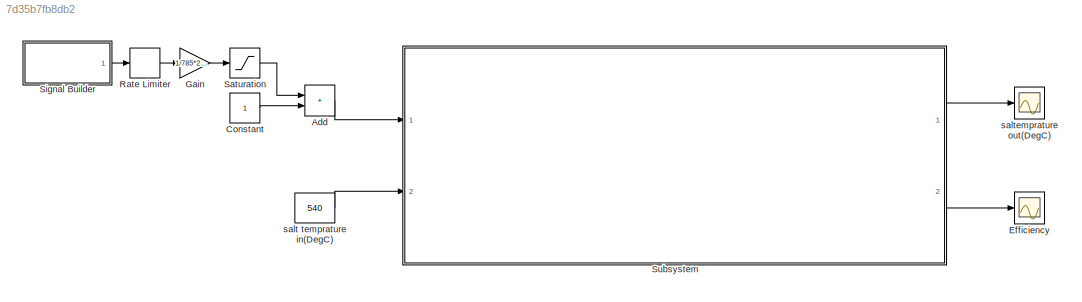
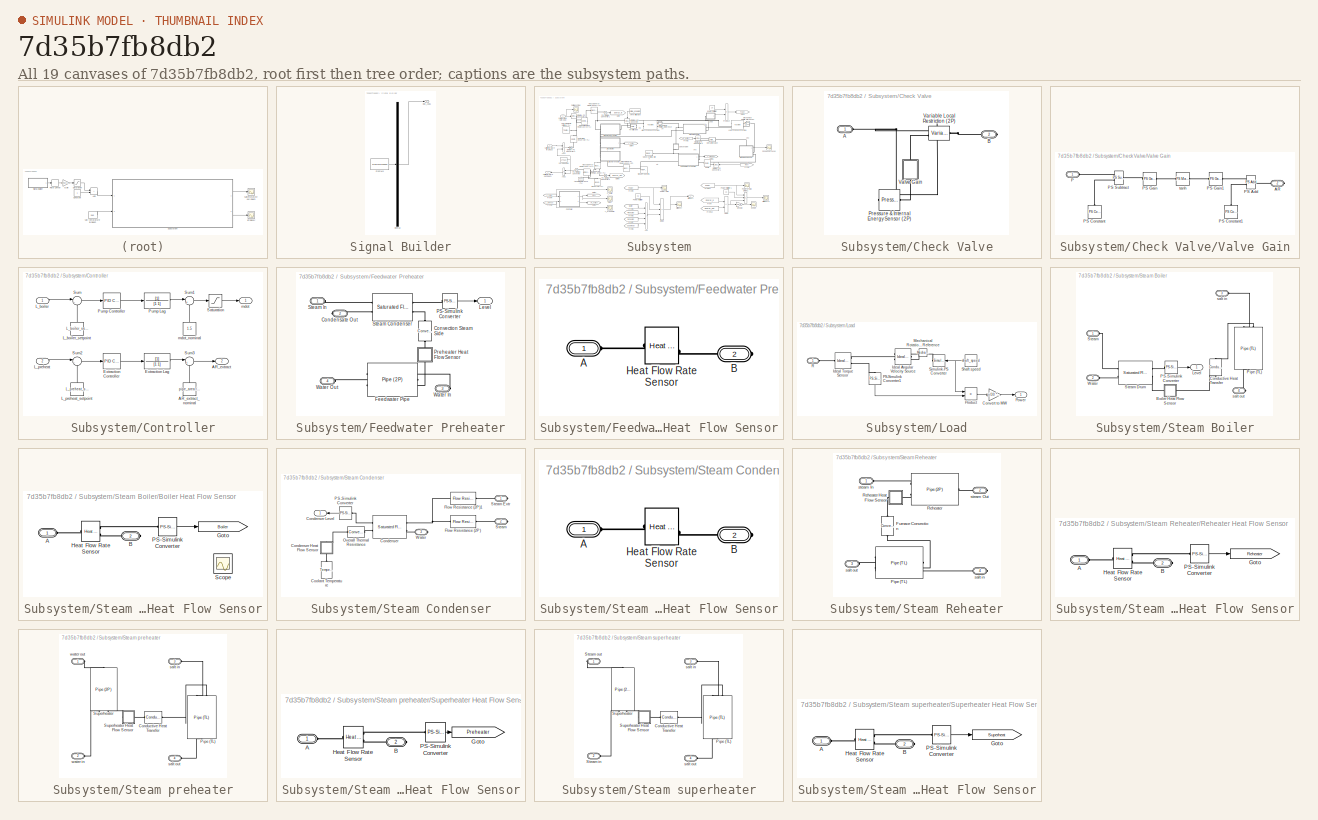
[diagram: thumbnail index - all 19 canvases of the model, root first then tree order]
MODEL slx_7d35b7fb8db2
KIND model
CONFIG AbsTol = 1e-3
CONFIG EnableMultiTasking = off
CONFIG FixedStep = auto
CONFIG MaxStep = auto
CONFIG MinStep = auto
CONFIG PreLoadFcn = pipe_area = 0.01; % m^2\nfurnace_temperature = 1500; % degC\nboiler_liquid_level = 0.7; % 1\ncondenser_liquid_level = 0.2;\npreheat_condenser_liquid_level = 0.2; % 1\n
CONFIG RelTol = 1e-3
CONFIG SampleTimeConstraint = Unconstrained
CONFIG SolverName = VariableStepAuto
CONFIG StartTime = 0.0
CONFIG StopTime = 3e5
BLOCK [Sum] Add
  IconShape = rectangular
  Ports = [2, 1]
BLOCK [Constant] Constant
BLOCK [Scope] Efficiency
  Floating = off
  NumInputPorts = 1
  Ports = [1]
  ScopeSpecificationString = Simulink.scopes.TimeScopeBlockCfg('CurrentConfiguration', extmgr.ConfigurationSet(extmgr.Configuration('Core','General UI',true),extmgr.Configuration('Core','Source UI',true),extmgr.Configuration('Sources','WiredSimulink',true,'DataLoggingVariableName','ScopeData2'),extmgr.Configuration('Visuals','Time Domain',true),extmgr.Configuration('Tools','Plot Navigation',true),extmgr.Configuration('Tools',...<+40ch>
BLOCK [Gain] Gain
  Gain = 1/785*29*1000/3600
BLOCK [RateLimiter] Rate Limiter
  FallingSlewLimit = -10
  RisingSlewLimit = 10
  SampleTimeMode = inherited
BLOCK [Saturate] Saturation
  LowerLimit = 0
  UpperLimit = 1000
BLOCK [SubSystem] Signal Builder
  ClipboardFcn = sigbuilder_block('clipboard');
  CloseFcn = sigbuilder_block('close');
  ContinueFcn = sigbuilder_block('continue');
  CopyFcn = sigbuilder_block('copy');
  DeleteFcn = sigbuilder_block('delete');
  LoadFcn = sigbuilder_block('load');
  MaskHideContents = on
  ModelCloseFcn = sigbuilder_block('modelClose');
  NameChangeFcn = sigbuilder_block('namechange');
  OpenFcn = sigbuilder_block('open',[151.5 202.875 550.5 400.125 ]);
  PauseFcn = sigbuilder_block('pause');
  Ports = [0, 1]
  PreSaveFcn = sigbuilder_block('preSave');
  RequestExecContextInheritance = off
  StartFcn = sigbuilder_block('start');
  StopFcn = sigbuilder_block('stop');
  Tag = STV Subsys
BLOCK [Outport] Signal Builder/DNI_Avg1
  Tag = STV Outport
BLOCK [Demux] Signal Builder/Demux
  DisplayOption = none
  Outputs = 1
  Ports = [1, 1]
  Tag = STV Demux
BLOCK [FromWorkspace] Signal Builder/FromWs
  Tag = STV FromWs
  VariableName = tuvar
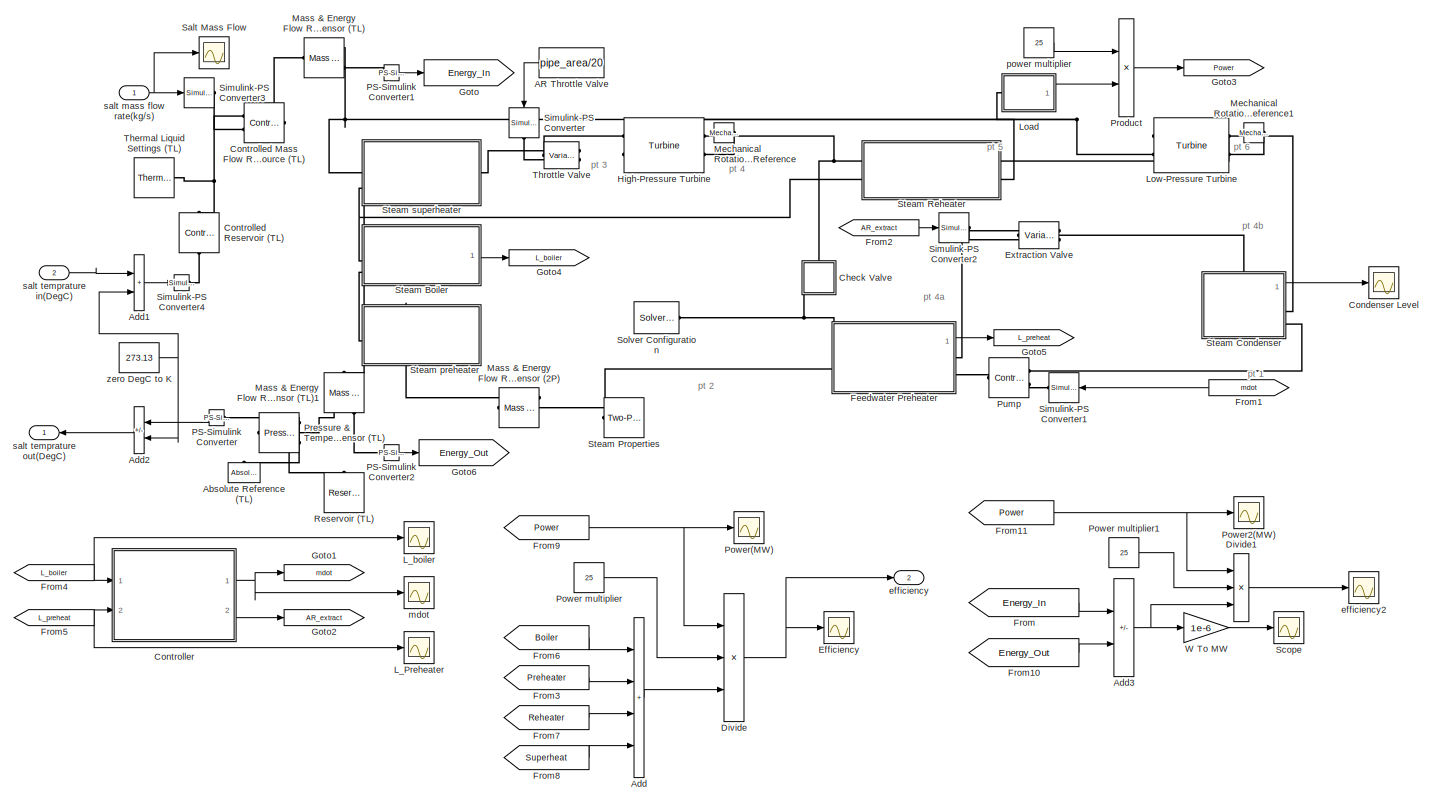
[diagram: Subsystem - part 1/1, most of the canvas]
BLOCK [SubSystem] Subsystem
  Ports = [2, 2]
  RequestExecContextInheritance = off
BLOCK [Constant] Subsystem/AR Throttle Valve
  NameLocation = right
  Value = pipe_area/20
BLOCK [Reference] Subsystem/Absolute Reference (TL)  REF=fl_lib/Thermal Liquid/Elements/Absolute Reference
(TL)
  NameLocation = right
  Ports = [0, 0, 0, 0, 0, 1]
  SourceBlock = fl_lib/Thermal Liquid/Elements/Absolute Reference\n(TL)
  SourceProductBaseCode = SS
  SourceType = Absolute Reference\n(TL)
BLOCK [Sum] Subsystem/Add
  IconShape = rectangular
  Inputs = ++++
  Ports = [4, 1]
BLOCK [Sum] Subsystem/Add1
  IconShape = rectangular
  Ports = [2, 1]
BLOCK [Sum] Subsystem/Add2
  IconShape = rectangular
  Inputs = +-
  NameLocation = top
  Ports = [2, 1]
BLOCK [Sum] Subsystem/Add3
  IconShape = rectangular
  Inputs = +-
  Ports = [2, 1]
BLOCK [SubSystem] Subsystem/Check Valve
  NameLocation = right
  Ports = [0, 0, 0, 0, 0, 1, 1]
  RequestExecContextInheritance = off
BLOCK [PMIOPort] Subsystem/Check Valve/A
  Side = Left
BLOCK [PMIOPort] Subsystem/Check Valve/B
  Port = 2
  Side = Right
BLOCK [Reference] Subsystem/Check Valve/Pressure & Internal Energy Sensor (2P)  REF=fl_lib/Two-Phase Fluid/Sensors/Pressure & Internal
Energy Sensor (2P)
  Ports = [0, 0, 0, 0, 0, 1, 3]
  SourceBlock = fl_lib/Two-Phase Fluid/Sensors/Pressure & Internal\nEnergy Sensor (2P)
  SourceProductName = Foundation Library
  SourceType = Pressure & Internal\nEnergy Sensor (2P)
BLOCK [SubSystem] Subsystem/Check Valve/Valve Gain
  NameLocation = right
  Ports = [0, 0, 0, 0, 0, 1, 1]
  RequestExecContextInheritance = off
BLOCK [PMIOPort] Subsystem/Check Valve/Valve Gain/AR
  Port = 2
  Side = Right
BLOCK [PMIOPort] Subsystem/Check Valve/Valve Gain/P
  Side = Left
BLOCK [Reference] Subsystem/Check Valve/Valve Gain/PS Add  REF=fl_lib/Physical Signals/Functions/PS Add
  Ports = [0, 0, 0, 0, 0, 2, 1]
  SourceBlock = fl_lib/Physical Signals/Functions/PS Add
  SourceProductName = Foundation Library
  SourceType = PS Add
BLOCK [Reference] Subsystem/Check Valve/Valve Gain/PS Constant  REF=fl_lib/Physical Signals/Sources/PS Constant
  NameLocation = right
  Ports = [0, 0, 0, 0, 0, 0, 1]
  SourceBlock = fl_lib/Physical Signals/Sources/PS Constant
  SourceProductName = Foundation Library
  SourceType = PS Constant
BLOCK [Reference] Subsystem/Check Valve/Valve Gain/PS Constant1  REF=fl_lib/Physical Signals/Sources/PS Constant
  NameLocation = right
  Ports = [0, 0, 0, 0, 0, 0, 1]
  SourceBlock = fl_lib/Physical Signals/Sources/PS Constant
  SourceProductName = Foundation Library
  SourceType = PS Constant
BLOCK [Reference] Subsystem/Check Valve/Valve Gain/PS Gain  REF=fl_lib/Physical Signals/Functions/PS Gain
  Ports = [0, 0, 0, 0, 0, 1, 1]
  SourceBlock = fl_lib/Physical Signals/Functions/PS Gain
  SourceProductName = Foundation Library
  SourceType = PS Gain
BLOCK [Reference] Subsystem/Check Valve/Valve Gain/PS Gain1  REF=fl_lib/Physical Signals/Functions/PS Gain
  Ports = [0, 0, 0, 0, 0, 1, 1]
  SourceBlock = fl_lib/Physical Signals/Functions/PS Gain
  SourceProductName = Foundation Library
  SourceType = PS Gain
BLOCK [Reference] Subsystem/Check Valve/Valve Gain/PS Subtract  REF=fl_lib/Physical Signals/Functions/PS Subtract
  Ports = [0, 0, 0, 0, 0, 2, 1]
  SourceBlock = fl_lib/Physical Signals/Functions/PS Subtract
  SourceProductName = Foundation Library
  SourceType = PS Subtract
BLOCK [Reference] Subsystem/Check Valve/Valve Gain/tanh  REF=fl_lib/Physical Signals/Functions/PS Math Function
  Ports = [0, 0, 0, 0, 0, 1, 1]
  SourceBlock = fl_lib/Physical Signals/Functions/PS Math Function
  SourceProductName = Foundation Library
  SourceType = PS Math Function
BLOCK [Reference] Subsystem/Check Valve/Variable Local Restriction (2P)  REF=fl_lib/Two-Phase Fluid/Elements/Variable Local
Restriction (2P)
  Ports = [0, 0, 0, 0, 0, 2, 1]
  SourceBlock = fl_lib/Two-Phase Fluid/Elements/Variable Local\nRestriction (2P)
  SourceProductName = Foundation Library
  SourceType = Variable Local\nRestriction (2P)
BLOCK [Scope] Subsystem/Condenser Level
  Floating = off
  NumInputPorts = 1
  Ports = [1]
  ScopeSpecificationString = Simulink.scopes.TimeScopeBlockCfg('CurrentConfiguration', extmgr.ConfigurationSet(extmgr.Configuration('Core','General UI',true),extmgr.Configuration('Core','Source UI',true),extmgr.Configuration('Sources','WiredSimulink',true,'DataLoggingVariableName','ScopeData1'),extmgr.Configuration('Visuals','Time Domain',true,'SerializedDisplays',{struct('MinYLimReal','0.11324','MaxYLimReal','0.20964','YLabe...<+1406ch>
BLOCK [Reference] Subsystem/Controlled Mass Flow Rate Source (TL)  REF=fl_lib/Thermal Liquid/Sources/Controlled Mass Flow
Rate Source (TL)
  Ports = [0, 0, 0, 0, 0, 2, 1]
  SourceBlock = fl_lib/Thermal Liquid/Sources/Controlled Mass Flow\nRate Source (TL)
  SourceProductBaseCode = SS
  SourceType = Controlled Mass Flow\nRate Source (TL)
BLOCK [Reference] Subsystem/Controlled Reservoir (TL)  REF=fl_lib/Thermal Liquid/Elements/Controlled Reservoir
(TL)
  NameLocation = right
  Ports = [0, 0, 0, 0, 0, 1, 1]
  SourceBlock = fl_lib/Thermal Liquid/Elements/Controlled Reservoir\n(TL)
  SourceProductBaseCode = SS
  SourceType = Controlled Reservoir\n(TL)
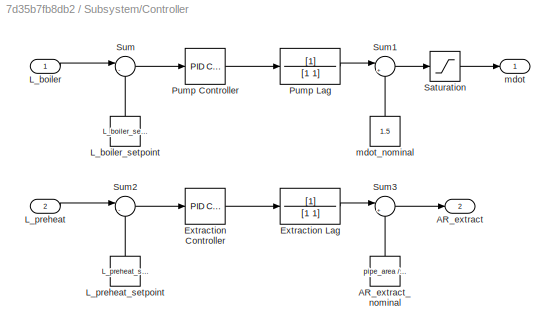
BLOCK [SubSystem] Subsystem/Controller
  Ports = [2, 2]
  RequestExecContextInheritance = off
BLOCK [Outport] Subsystem/Controller/AR_extract
  Port = 2
  VectorParamsAs1DForOutWhenUnconnected = off
BLOCK [Constant] Subsystem/Controller/AR_extract_nominal
  NameLocation = right
  Value = pipe_area / 500
BLOCK [Reference] Subsystem/Controller/Extraction Controller  REF=pid_lib/PID Controller
  Ports = [1, 1]
  SourceBlock = pid_lib/PID Controller
  SourceProductBaseCode = SL
  SourceType = PID 1dof
BLOCK [TransferFcn] Subsystem/Controller/Extraction Lag
  Denominator = [1 1]
BLOCK [Inport] Subsystem/Controller/L_boiler
BLOCK [Constant] Subsystem/Controller/L_boiler_setpoint
  NameLocation = right
  Value = L_boiler_setpoint
BLOCK [Inport] Subsystem/Controller/L_preheat
  Port = 2
BLOCK [Constant] Subsystem/Controller/L_preheat_setpoint
  NameLocation = right
  Value = L_preheat_setpoint
BLOCK [Reference] Subsystem/Controller/Pump Controller  REF=pid_lib/PID Controller
  Ports = [1, 1]
  SourceBlock = pid_lib/PID Controller
  SourceProductBaseCode = SL
  SourceType = PID 1dof
BLOCK [TransferFcn] Subsystem/Controller/Pump Lag
  Denominator = [1 1]
BLOCK [Saturate] Subsystem/Controller/Saturation
  LowerLimit = 0
  UpperLimit = 30
BLOCK [Sum] Subsystem/Controller/Sum
  Inputs = |-+
  Ports = [2, 1]
BLOCK [Sum] Subsystem/Controller/Sum1
  Inputs = |++
  Ports = [2, 1]
BLOCK [Sum] Subsystem/Controller/Sum2
  Inputs = |-+
  Ports = [2, 1]
BLOCK [Sum] Subsystem/Controller/Sum3
  Inputs = |++
  Ports = [2, 1]
BLOCK [Outport] Subsystem/Controller/mdot
  VectorParamsAs1DForOutWhenUnconnected = off
BLOCK [Constant] Subsystem/Controller/mdot_nominal
  NameLocation = right
  Value = 1.5
BLOCK [Product] Subsystem/Divide
  Inputs = *//
  Ports = [3, 1]
BLOCK [Product] Subsystem/Divide1
  Inputs = *//
  Ports = [3, 1]
BLOCK [Scope] Subsystem/Efficiency
  Floating = off
  NumInputPorts = 1
  Ports = [1]
  ScopeSpecificationString = Simulink.scopes.TimeScopeBlockCfg('CurrentConfiguration', extmgr.ConfigurationSet(extmgr.Configuration('Core','General UI',true),extmgr.Configuration('Core','Source UI',true),extmgr.Configuration('Sources','WiredSimulink',true,'DataLoggingVariableName','ScopeData1'),extmgr.Configuration('Visuals','Time Domain',true,'SerializedDisplays',{struct('MinYLimReal','0','MaxYLimReal','1','YLabelReal','','M...<+1395ch>
BLOCK [Reference] Subsystem/Extraction Valve  REF=fl_lib/Two-Phase Fluid/Elements/Variable Local
Restriction (2P)
  Ports = [0, 0, 0, 0, 0, 2, 1]
  SourceBlock = fl_lib/Two-Phase Fluid/Elements/Variable Local\nRestriction (2P)
  SourceProductName = Foundation Library
  SourceType = Variable Local\nRestriction (2P)
BLOCK [SubSystem] Subsystem/Feedwater Preheater
  Ports = [0, 1, 0, 0, 0, 2, 2]
  RequestExecContextInheritance = off
  Tag = PublishSubsystem
BLOCK [PMIOPort] Subsystem/Feedwater Preheater/Condensate Out
  Port = 2
  Side = Right
BLOCK [Reference] Subsystem/Feedwater Preheater/Convection Steam Side  REF=fl_lib/Thermal/Thermal Elements/Convective Heat
Transfer
  NameLocation = right
  Ports = [0, 0, 0, 0, 0, 1, 1]
  SourceBlock = fl_lib/Thermal/Thermal Elements/Convective Heat\nTransfer
  SourceProductName = Foundation Library
  SourceType = Convective Heat\nTransfer
BLOCK [Reference] Subsystem/Feedwater Preheater/Feedwater Pipe  REF=fl_lib/Two-Phase Fluid/Elements/Pipe (2P)
  Ports = [0, 0, 0, 0, 0, 2, 1]
  SourceBlock = fl_lib/Two-Phase Fluid/Elements/Pipe (2P)
  SourceProductName = Foundation Library
  SourceType = Pipe (2P)
BLOCK [Outport] Subsystem/Feedwater Preheater/Level
  VectorParamsAs1DForOutWhenUnconnected = off
BLOCK [Reference] Subsystem/Feedwater Preheater/PS-Simulink Converter  REF=nesl_utility/PS-Simulink
Converter
  Ports = [0, 1, 0, 0, 0, 1]
  SourceBlock = nesl_utility/PS-Simulink\nConverter
  SourceProductName = Utilities
  SourceType = PS-Simulink\nConverter
BLOCK [SubSystem] Subsystem/Feedwater Preheater/Preheater Heat Flow Sensor
  NameLocation = right
  Ports = [0, 0, 0, 0, 0, 1, 1]
  RequestExecContextInheritance = off
BLOCK [PMIOPort] Subsystem/Feedwater Preheater/Preheater Heat Flow Sensor/A
  Side = Left
BLOCK [PMIOPort] Subsystem/Feedwater Preheater/Preheater Heat Flow Sensor/B
  Port = 2
  Side = Right
BLOCK [Reference] Subsystem/Feedwater Preheater/Preheater Heat Flow Sensor/Heat Flow Rate Sensor  REF=fl_lib/Thermal/Thermal Sensors/Heat Flow Rate
Sensor
  Ports = [0, 0, 0, 0, 0, 1, 2]
  SourceBlock = fl_lib/Thermal/Thermal Sensors/Heat Flow Rate\nSensor
  SourceProductName = Foundation Library
  SourceType = Heat Flow Rate\nSensor
BLOCK [Reference] Subsystem/Feedwater Preheater/Steam Condenser  REF=RankineCycle_lib/Saturated Fluid
Chamber
  Ports = [0, 0, 0, 0, 0, 2, 2]
  SourceBlock = RankineCycle_lib/Saturated Fluid\nChamber
  SourceProductBaseCode = SS
  SourceType = Saturated Fluid\nChamber
BLOCK [PMIOPort] Subsystem/Feedwater Preheater/Steam In
  Side = Left
BLOCK [PMIOPort] Subsystem/Feedwater Preheater/Water In
  Port = 3
  Side = Right
BLOCK [PMIOPort] Subsystem/Feedwater Preheater/Water Out
  Port = 4
  Side = Left
BLOCK [From] Subsystem/From
  GotoTag = Energy_In
  TagVisibility = global
BLOCK [From] Subsystem/From1
  GotoTag = mdot
  TagVisibility = global
BLOCK [From] Subsystem/From10
  GotoTag = Energy_Out
  TagVisibility = global
BLOCK [From] Subsystem/From11
  GotoTag = Power
  TagVisibility = global
BLOCK [From] Subsystem/From2
  GotoTag = AR_extract
  TagVisibility = global
BLOCK [From] Subsystem/From3
  GotoTag = Preheater
  TagVisibility = global
BLOCK [From] Subsystem/From4
  GotoTag = L_boiler
  TagVisibility = global
BLOCK [From] Subsystem/From5
  GotoTag = L_preheat
  TagVisibility = global
BLOCK [From] Subsystem/From6
  GotoTag = Boiler
  TagVisibility = global
BLOCK [From] Subsystem/From7
  GotoTag = Reheater
  TagVisibility = global
BLOCK [From] Subsystem/From8
  GotoTag = Superheat
  TagVisibility = global
BLOCK [From] Subsystem/From9
  GotoTag = Power
  TagVisibility = global
BLOCK [Goto] Subsystem/Goto
  GotoTag = Energy_In
  TagVisibility = global
BLOCK [Goto] Subsystem/Goto1
  GotoTag = mdot
  TagVisibility = global
BLOCK [Goto] Subsystem/Goto2
  GotoTag = AR_extract
  TagVisibility = global
BLOCK [Goto] Subsystem/Goto3
  GotoTag = Power
  TagVisibility = global
BLOCK [Goto] Subsystem/Goto4
  GotoTag = L_boiler
  TagVisibility = global
BLOCK [Goto] Subsystem/Goto5
  GotoTag = L_preheat
  TagVisibility = global
BLOCK [Goto] Subsystem/Goto6
  GotoTag = Energy_Out
  TagVisibility = global
BLOCK [Reference] Subsystem/High-Pressure Turbine  REF=RankineCycle_lib/Turbine
  Ports = [0, 0, 0, 0, 0, 2, 2]
  SourceBlock = RankineCycle_lib/Turbine
  SourceProductBaseCode = SS
  SourceType = Turbine
BLOCK [Scope] Subsystem/L_Preheater
  Floating = off
  NumInputPorts = 1
  Ports = [1]
  ScopeSpecificationString = Simulink.scopes.TimeScopeBlockCfg('CurrentConfiguration', extmgr.ConfigurationSet(extmgr.Configuration('Core','General UI',true),extmgr.Configuration('Core','Source UI',true),extmgr.Configuration('Sources','WiredSimulink',true,'DataLoggingVariableName','ScopeData3'),extmgr.Configuration('Visuals','Time Domain',true,'SerializedDisplays',{struct('MinYLimReal','0.19674','MaxYLimReal','0.20551','YLabe...<+1412ch>
BLOCK [Scope] Subsystem/L_boiler
  Floating = off
  NumInputPorts = 1
  Ports = [1]
  ScopeSpecificationString = Simulink.scopes.TimeScopeBlockCfg('CurrentConfiguration', extmgr.ConfigurationSet(extmgr.Configuration('Core','General UI',true),extmgr.Configuration('Core','Source UI',true),extmgr.Configuration('Sources','WiredSimulink',true,'DataLoggingVariableName','ScopeData2'),extmgr.Configuration('Visuals','Time Domain',true,'SerializedDisplays',{struct('MinYLimReal','0.67965','MaxYLimReal','0.71499','YLabe...<+1402ch>
BLOCK [SubSystem] Subsystem/Load
  Ports = [0, 1, 0, 0, 0, 1]
  RequestExecContextInheritance = off
BLOCK [Gain] Subsystem/Load/Convert to MW
  Gain = pi/30 * 1e-6
BLOCK [Reference] Subsystem/Load/Ideal Angular Velocity Source  REF=fl_lib/Mechanical/Mechanical Sources/Ideal Angular
Velocity Source
  Ports = [0, 0, 0, 0, 0, 1, 2]
  SourceBlock = fl_lib/Mechanical/Mechanical Sources/Ideal Angular\nVelocity Source
  SourceProductName = Foundation Library
  SourceType = Ideal Angular\nVelocity Source
BLOCK [Reference] Subsystem/Load/Ideal Torque Sensor  REF=fl_lib/Mechanical/Mechanical Sensors/Ideal Torque Sensor
  Ports = [0, 0, 0, 0, 0, 1, 2]
  SourceBlock = fl_lib/Mechanical/Mechanical Sensors/Ideal Torque Sensor
  SourceProductName = Foundation Library
  SourceType = Ideal Torque Sensor
BLOCK [Reference] Subsystem/Load/Mechanical Rotational Reference  REF=fl_lib/Mechanical/Rotational Elements/Mechanical
Rotational Reference
  Ports = [0, 0, 0, 0, 0, 1]
  SourceBlock = fl_lib/Mechanical/Rotational Elements/Mechanical\nRotational Reference
  SourceProductName = Foundation Library
  SourceType = Mechanical\nRotational Reference
BLOCK [Reference] Subsystem/Load/PS-Simulink Converter1  REF=nesl_utility/PS-Simulink
Converter
  NameLocation = left
  Ports = [0, 1, 0, 0, 0, 1]
  SourceBlock = nesl_utility/PS-Simulink\nConverter
  SourceProductName = Utilities
  SourceType = PS-Simulink\nConverter
BLOCK [Outport] Subsystem/Load/Power
  VectorParamsAs1DForOutWhenUnconnected = off
BLOCK [Product] Subsystem/Load/Product
  Ports = [2, 1]
BLOCK [PMIOPort] Subsystem/Load/R
  Side = Left
BLOCK [Constant] Subsystem/Load/Shaft speed
  Value = shaft_speed
BLOCK [Reference] Subsystem/Load/Simulink-PS Converter  REF=nesl_utility/Simulink-PS
Converter
  Ports = [1, 0, 0, 0, 0, 0, 1]
  SourceBlock = nesl_utility/Simulink-PS\nConverter
  SourceProductName = Utilities
  SourceType = Simulink-PS\nConverter
BLOCK [Reference] Subsystem/Low-Pressure Turbine  REF=RankineCycle_lib/Turbine
  Ports = [0, 0, 0, 0, 0, 2, 2]
  SourceBlock = RankineCycle_lib/Turbine
  SourceProductBaseCode = SS
  SourceType = Turbine
BLOCK [Reference] Subsystem/Mass & Energy Flow Rate Sensor (2P)  REF=fl_lib/Two-Phase Fluid/Sensors/Mass & Energy Flow
Rate Sensor (2P)
  NameLocation = top
  Ports = [0, 0, 0, 0, 0, 1, 3]
  SourceBlock = fl_lib/Two-Phase Fluid/Sensors/Mass & Energy Flow\nRate Sensor (2P)
  SourceProductBaseCode = SS
  SourceType = Mass & Energy Flow\nRate Sensor (2P)
BLOCK [Reference] Subsystem/Mass & Energy Flow Rate Sensor (TL)  REF=fl_lib/Thermal Liquid/Sensors/Mass & Energy Flow
Rate Sensor (TL)
  Ports = [0, 0, 0, 0, 0, 1, 3]
  SourceBlock = fl_lib/Thermal Liquid/Sensors/Mass & Energy Flow\nRate Sensor (TL)
  SourceProductBaseCode = SS
  SourceType = Mass & Energy Flow\nRate Sensor (TL)
BLOCK [Reference] Subsystem/Mass & Energy Flow Rate Sensor (TL)1  REF=fl_lib/Thermal Liquid/Sensors/Mass & Energy Flow
Rate Sensor (TL)
  NameLocation = left
  Ports = [0, 0, 0, 0, 0, 1, 3]
  SourceBlock = fl_lib/Thermal Liquid/Sensors/Mass & Energy Flow\nRate Sensor (TL)
  SourceProductBaseCode = SS
  SourceType = Mass & Energy Flow\nRate Sensor (TL)
BLOCK [Reference] Subsystem/Mechanical Rotational Reference  REF=fl_lib/Mechanical/Rotational Elements/Mechanical
Rotational Reference
  NameLocation = top
  Ports = [0, 0, 0, 0, 0, 1]
  SourceBlock = fl_lib/Mechanical/Rotational Elements/Mechanical\nRotational Reference
  SourceProductName = Foundation Library
  SourceType = Mechanical\nRotational Reference
BLOCK [Reference] Subsystem/Mechanical Rotational Reference1  REF=fl_lib/Mechanical/Rotational Elements/Mechanical
Rotational Reference
  NameLocation = top
  Ports = [0, 0, 0, 0, 0, 1]
  SourceBlock = fl_lib/Mechanical/Rotational Elements/Mechanical\nRotational Reference
  SourceProductName = Foundation Library
  SourceType = Mechanical\nRotational Reference
BLOCK [Reference] Subsystem/PS-Simulink Converter  REF=nesl_utility/PS-Simulink
Converter
  NameLocation = top
  Ports = [0, 1, 0, 0, 0, 1]
  SourceBlock = nesl_utility/PS-Simulink\nConverter
  SourceProductBaseCode = SS
  SourceType = PS-Simulink\nConverter
BLOCK [Reference] Subsystem/PS-Simulink Converter1  REF=nesl_utility/PS-Simulink
Converter
  Ports = [0, 1, 0, 0, 0, 1]
  SourceBlock = nesl_utility/PS-Simulink\nConverter
  SourceProductBaseCode = SS
  SourceType = PS-Simulink\nConverter
BLOCK [Reference] Subsystem/PS-Simulink Converter2  REF=nesl_utility/PS-Simulink
Converter
  Ports = [0, 1, 0, 0, 0, 1]
  SourceBlock = nesl_utility/PS-Simulink\nConverter
  SourceProductBaseCode = SS
  SourceType = PS-Simulink\nConverter
BLOCK [Constant] Subsystem/Power multiplier
  Value = 25
BLOCK [Constant] Subsystem/Power multiplier1
  Value = 25
BLOCK [Scope] Subsystem/Power(MW)
  Floating = off
  NumInputPorts = 1
  Ports = [1]
  ScopeSpecificationString = Simulink.scopes.TimeScopeBlockCfg('CurrentConfiguration', extmgr.ConfigurationSet(extmgr.Configuration('Core','General UI',true),extmgr.Configuration('Core','Source UI',true),extmgr.Configuration('Sources','WiredSimulink',true),extmgr.Configuration('Visuals','Time Domain',true,'SerializedDisplays',{struct('MinYLimReal','-0.25428','MaxYLimReal','26.88062','YLabelReal','','MinYLimMag','0.00000','Max...<+1368ch>
BLOCK [Scope] Subsystem/Power2(MW)
  Floating = off
  NumInputPorts = 1
  Ports = [1]
  ScopeSpecificationString = Simulink.scopes.TimeScopeBlockCfg('CurrentConfiguration', extmgr.ConfigurationSet(extmgr.Configuration('Core','General UI',true),extmgr.Configuration('Core','Source UI',true),extmgr.Configuration('Sources','WiredSimulink',true,'DataLoggingVariableName','ScopeData2'),extmgr.Configuration('Visuals','Time Domain',true,'SerializedDisplays',{struct('MinYLimReal','-0.25428','MaxYLimReal','26.88062','YLa...<+1405ch>
BLOCK [Reference] Subsystem/Pressure & Temperature Sensor (TL)  REF=fl_lib/Thermal Liquid/Sensors/Pressure &
Temperature Sensor
(TL)
  NameLocation = top
  Ports = [0, 0, 0, 0, 0, 1, 3]
  SourceBlock = fl_lib/Thermal Liquid/Sensors/Pressure &\nTemperature Sensor\n(TL)
  SourceProductBaseCode = SS
  SourceType = Pressure &\nTemperature Sensor\n(TL)
BLOCK [Product] Subsystem/Product
  Ports = [2, 1]
BLOCK [Reference] Subsystem/Pump  REF=fl_lib/Two-Phase Fluid/Sources/Controlled Mass Flow
Rate Source (2P)
  Ports = [0, 0, 0, 0, 0, 2, 1]
  SourceBlock = fl_lib/Two-Phase Fluid/Sources/Controlled Mass Flow\nRate Source (2P)
  SourceProductName = Foundation Library
  SourceType = Controlled Mass Flow\nRate Source (2P)
BLOCK [Reference] Subsystem/Reservoir (TL)  REF=fl_lib/Thermal Liquid/Elements/Reservoir (TL)
  NameLocation = right
  Ports = [0, 0, 0, 0, 0, 1]
  SourceBlock = fl_lib/Thermal Liquid/Elements/Reservoir (TL)
  SourceProductBaseCode = SS
  SourceType = Reservoir (TL)
BLOCK [Scope] Subsystem/Salt Mass Flow
  Floating = off
  NumInputPorts = 1
  Ports = [1]
  ScopeSpecificationString = Simulink.scopes.TimeScopeBlockCfg('CurrentConfiguration', extmgr.ConfigurationSet(extmgr.Configuration('Core','General UI',true),extmgr.Configuration('Core','Source UI',true),extmgr.Configuration('Sources','WiredSimulink',true,'DataLoggingVariableName','ScopeData4'),extmgr.Configuration('Visuals','Time Domain',true,'SerializedDisplays',{struct('MinYLimReal','-0.00758','MaxYLimReal','10.06824','YLa...<+1419ch>
BLOCK [Scope] Subsystem/Scope
  Floating = off
  NumInputPorts = 1
  Ports = [1]
  ScopeSpecificationString = Simulink.scopes.TimeScopeBlockCfg('CurrentConfiguration', extmgr.ConfigurationSet(extmgr.Configuration('Core','General UI',true),extmgr.Configuration('Core','Source UI',true),extmgr.Configuration('Sources','WiredSimulink',true,'DataLoggingVariableName','ScopeData1'),extmgr.Configuration('Visuals','Time Domain',true,'SerializedDisplays',{struct('MinYLimReal','0.07836','MaxYLimReal','3.09853','YLabe...<+1364ch>
BLOCK [Reference] Subsystem/Simulink-PS Converter  REF=nesl_utility/Simulink-PS
Converter
  NameLocation = left
  Ports = [1, 0, 0, 0, 0, 0, 1]
  SourceBlock = nesl_utility/Simulink-PS\nConverter
  SourceProductName = Utilities
  SourceType = Simulink-PS\nConverter
BLOCK [Reference] Subsystem/Simulink-PS Converter1  REF=nesl_utility/Simulink-PS
Converter
  Ports = [1, 0, 0, 0, 0, 0, 1]
  SourceBlock = nesl_utility/Simulink-PS\nConverter
  SourceProductName = Utilities
  SourceType = Simulink-PS\nConverter
BLOCK [Reference] Subsystem/Simulink-PS Converter2  REF=nesl_utility/Simulink-PS
Converter
  Ports = [1, 0, 0, 0, 0, 0, 1]
  SourceBlock = nesl_utility/Simulink-PS\nConverter
  SourceProductName = Utilities
  SourceType = Simulink-PS\nConverter
BLOCK [Reference] Subsystem/Simulink-PS Converter3  REF=nesl_utility/Simulink-PS
Converter
  Ports = [1, 0, 0, 0, 0, 0, 1]
  SourceBlock = nesl_utility/Simulink-PS\nConverter
  SourceProductName = Utilities
  SourceType = Simulink-PS\nConverter
BLOCK [Reference] Subsystem/Simulink-PS Converter4  REF=nesl_utility/Simulink-PS
Converter
  Ports = [1, 0, 0, 0, 0, 0, 1]
  SourceBlock = nesl_utility/Simulink-PS\nConverter
  SourceProductBaseCode = SS
  SourceType = Simulink-PS\nConverter
BLOCK [Reference] Subsystem/Solver Configuration  REF=nesl_utility/Solver
Configuration
  Ports = [0, 0, 0, 0, 0, 0, 1]
  SourceBlock = nesl_utility/Solver\nConfiguration
  SourceProductName = Utilities
  SourceType = Solver\nConfiguration
BLOCK [SubSystem] Subsystem/Steam Boiler
  Ports = [0, 1, 0, 0, 0, 4]
  RequestExecContextInheritance = off
  Tag = PublishSubsystem
BLOCK [SubSystem] Subsystem/Steam Boiler/Boiler Heat Flow Sensor
  Ports = [0, 0, 0, 0, 0, 1, 1]
  RequestExecContextInheritance = off
BLOCK [PMIOPort] Subsystem/Steam Boiler/Boiler Heat Flow Sensor/A
  Side = Left
BLOCK [PMIOPort] Subsystem/Steam Boiler/Boiler Heat Flow Sensor/B
  Port = 2
  Side = Right
BLOCK [Goto] Subsystem/Steam Boiler/Boiler Heat Flow Sensor/Goto
  GotoTag = Boiler
  TagVisibility = global
BLOCK [Reference] Subsystem/Steam Boiler/Boiler Heat Flow Sensor/Heat Flow Rate Sensor  REF=fl_lib/Thermal/Thermal Sensors/Heat Flow Rate
Sensor
  Ports = [0, 0, 0, 0, 0, 1, 2]
  SourceBlock = fl_lib/Thermal/Thermal Sensors/Heat Flow Rate\nSensor
  SourceProductName = Foundation Library
  SourceType = Heat Flow Rate\nSensor
BLOCK [Reference] Subsystem/Steam Boiler/Boiler Heat Flow Sensor/PS-Simulink Converter  REF=nesl_utility/PS-Simulink
Converter
  Ports = [0, 1, 0, 0, 0, 1]
  SourceBlock = nesl_utility/PS-Simulink\nConverter
  SourceProductName = Utilities
  SourceType = PS-Simulink\nConverter
BLOCK [Scope] Subsystem/Steam Boiler/Boiler Heat Flow Sensor/Scope
  Commented = on
  Floating = off
  NumInputPorts = 1
  Ports = [1]
  ScopeSpecificationString = Simulink.scopes.TimeScopeBlockCfg('CurrentConfiguration', extmgr.ConfigurationSet(extmgr.Configuration('Core','General UI',true),extmgr.Configuration('Core','Source UI',true),extmgr.Configuration('Sources','WiredSimulink',true,'DataLoggingVariableName','ScopeData8'),extmgr.Configuration('Visuals','Time Domain',true,'SerializedDisplays',{struct('MinYLimReal','0.00003','MaxYLimReal','0.000096','YLab...<+1382ch>
BLOCK [Reference] Subsystem/Steam Boiler/Conductive Heat Transfer  REF=fl_lib/Thermal/Thermal Elements/Conductive Heat
Transfer
  NameLocation = left
  Ports = [0, 0, 0, 0, 0, 1, 1]
  SourceBlock = fl_lib/Thermal/Thermal Elements/Conductive Heat\nTransfer
  SourceProductBaseCode = SS
  SourceType = Conductive Heat\nTransfer
BLOCK [Outport] Subsystem/Steam Boiler/Level
  VectorParamsAs1DForOutWhenUnconnected = off
BLOCK [Reference] Subsystem/Steam Boiler/PS-Simulink Converter  REF=nesl_utility/PS-Simulink
Converter
  Ports = [0, 1, 0, 0, 0, 1]
  SourceBlock = nesl_utility/PS-Simulink\nConverter
  SourceProductName = Utilities
  SourceType = PS-Simulink\nConverter
BLOCK [Reference] Subsystem/Steam Boiler/Pipe (TL)  REF=fl_lib/Thermal Liquid/Elements/Pipe (TL)
  NameLocation = left
  Ports = [0, 0, 0, 0, 0, 2, 1]
  SourceBlock = fl_lib/Thermal Liquid/Elements/Pipe (TL)
  SourceProductBaseCode = SS
  SourceType = Pipe (TL)
BLOCK [PMIOPort] Subsystem/Steam Boiler/Steam
  Side = Left
BLOCK [Reference] Subsystem/Steam Boiler/Steam Drum  REF=RankineCycle_lib/Saturated Fluid
Chamber
  Ports = [0, 0, 0, 0, 0, 2, 2]
  SourceBlock = RankineCycle_lib/Saturated Fluid\nChamber
  SourceProductBaseCode = SS
  SourceType = Saturated Fluid\nChamber
BLOCK [PMIOPort] Subsystem/Steam Boiler/Water
  Port = 2
  Side = Left
BLOCK [PMIOPort] Subsystem/Steam Boiler/salt in
  Port = 3
  Side = Left
BLOCK [PMIOPort] Subsystem/Steam Boiler/salt out
  Port = 4
  Side = Left
BLOCK [SubSystem] Subsystem/Steam Condenser
  Ports = [0, 1, 0, 0, 0, 0, 3]
  RequestExecContextInheritance = off
  Tag = PublishSubsystem
BLOCK [Reference] Subsystem/Steam Condenser/Condenser  REF=RankineCycle_lib/Saturated Fluid
Chamber
  Ports = [0, 0, 0, 0, 0, 2, 2]
  SourceBlock = RankineCycle_lib/Saturated Fluid\nChamber
  SourceProductBaseCode = SS
  SourceType = Saturated Fluid\nChamber
BLOCK [SubSystem] Subsystem/Steam Condenser/Condenser Heat Flow Sensor
  NameLocation = left
  Ports = [0, 0, 0, 0, 0, 1, 1]
  RequestExecContextInheritance = off
BLOCK [PMIOPort] Subsystem/Steam Condenser/Condenser Heat Flow Sensor/A
  Side = Left
BLOCK [PMIOPort] Subsystem/Steam Condenser/Condenser Heat Flow Sensor/B
  Port = 2
  Side = Right
BLOCK [Reference] Subsystem/Steam Condenser/Condenser Heat Flow Sensor/Heat Flow Rate Sensor  REF=fl_lib/Thermal/Thermal Sensors/Heat Flow Rate
Sensor
  Ports = [0, 0, 0, 0, 0, 1, 2]
  SourceBlock = fl_lib/Thermal/Thermal Sensors/Heat Flow Rate\nSensor
  SourceProductName = Foundation Library
  SourceType = Heat Flow Rate\nSensor
BLOCK [Outport] Subsystem/Steam Condenser/Condenser Level
  NameLocation = top
  VectorParamsAs1DForOutWhenUnconnected = off
BLOCK [Reference] Subsystem/Steam Condenser/Coolant Temperature  REF=fl_lib/Thermal/Thermal Sources/Temperature Source
  NameLocation = right
  Ports = [0, 0, 0, 0, 0, 1]
  SourceBlock = fl_lib/Thermal/Thermal Sources/Temperature Source
  SourceProductName = Foundation Library
  SourceType = Temperature Source
BLOCK [Reference] Subsystem/Steam Condenser/Flow Resistance (2P)  REF=fl_lib/Two-Phase Fluid/Elements/Flow Resistance (2P)
  Ports = [0, 0, 0, 0, 0, 1, 1]
  SourceBlock = fl_lib/Two-Phase Fluid/Elements/Flow Resistance (2P)
  SourceProductName = Foundation Library
  SourceType = Flow Resistance (2P)
BLOCK [Reference] Subsystem/Steam Condenser/Flow Resistance (2P)1  REF=fl_lib/Two-Phase Fluid/Elements/Flow Resistance (2P)
  Ports = [0, 0, 0, 0, 0, 1, 1]
  SourceBlock = fl_lib/Two-Phase Fluid/Elements/Flow Resistance (2P)
  SourceProductName = Foundation Library
  SourceType = Flow Resistance (2P)
BLOCK [Reference] Subsystem/Steam Condenser/Overall Thermal Resistance  REF=fl_lib/Thermal/Thermal Elements/Convective Heat
Transfer
  Ports = [0, 0, 0, 0, 0, 1, 1]
  SourceBlock = fl_lib/Thermal/Thermal Elements/Convective Heat\nTransfer
  SourceProductName = Foundation Library
  SourceType = Convective Heat\nTransfer
BLOCK [Reference] Subsystem/Steam Condenser/PS-Simulink Converter  REF=nesl_utility/PS-Simulink
Converter
  NameLocation = top
  Ports = [0, 1, 0, 0, 0, 1]
  SourceBlock = nesl_utility/PS-Simulink\nConverter
  SourceProductName = Utilities
  SourceType = PS-Simulink\nConverter
BLOCK [PMIOPort] Subsystem/Steam Condenser/Steam
  Port = 2
  Side = Right
BLOCK [PMIOPort] Subsystem/Steam Condenser/Steam Extr
  Side = Right
BLOCK [PMIOPort] Subsystem/Steam Condenser/Water
  Port = 3
  Side = Right
BLOCK [Reference] Subsystem/Steam Properties  REF=fl_lib/Two-Phase Fluid/Utilities/Two-Phase Fluid
Properties (2P)
  Ports = [0, 0, 0, 0, 0, 0, 1]
  SourceBlock = fl_lib/Two-Phase Fluid/Utilities/Two-Phase Fluid\nProperties (2P)
  SourceProductName = Foundation Library
  SourceType = Two-Phase Fluid\nProperties (2P)
BLOCK [SubSystem] Subsystem/Steam Reheater
  Ports = [0, 0, 0, 0, 0, 2, 2]
  RequestExecContextInheritance = off
  Tag = PublishSubsystem
BLOCK [Reference] Subsystem/Steam Reheater/Furnace Convection  REF=fl_lib/Thermal/Thermal Elements/Convective Heat
Transfer
  NameLocation = right
  Ports = [0, 0, 0, 0, 0, 1, 1]
  SourceBlock = fl_lib/Thermal/Thermal Elements/Convective Heat\nTransfer
  SourceProductName = Foundation Library
  SourceType = Convective Heat\nTransfer
BLOCK [Reference] Subsystem/Steam Reheater/Pipe (TL)  REF=fl_lib/Thermal Liquid/Elements/Pipe (TL)
  NameLocation = top
  Ports = [0, 0, 0, 0, 0, 2, 1]
  SourceBlock = fl_lib/Thermal Liquid/Elements/Pipe (TL)
  SourceProductBaseCode = SS
  SourceType = Pipe (TL)
BLOCK [Reference] Subsystem/Steam Reheater/Reheater  REF=fl_lib/Two-Phase Fluid/Elements/Pipe (2P)
  Ports = [0, 0, 0, 0, 0, 2, 1]
  SourceBlock = fl_lib/Two-Phase Fluid/Elements/Pipe (2P)
  SourceProductName = Foundation Library
  SourceType = Pipe (2P)
BLOCK [SubSystem] Subsystem/Steam Reheater/Reheater Heat Flow Sensor
  Ports = [0, 0, 0, 0, 0, 1, 1]
  RequestExecContextInheritance = off
BLOCK [PMIOPort] Subsystem/Steam Reheater/Reheater Heat Flow Sensor/A
  Side = Left
BLOCK [PMIOPort] Subsystem/Steam Reheater/Reheater Heat Flow Sensor/B
  Port = 2
  Side = Right
BLOCK [Goto] Subsystem/Steam Reheater/Reheater Heat Flow Sensor/Goto
  GotoTag = Reheater
  TagVisibility = global
BLOCK [Reference] Subsystem/Steam Reheater/Reheater Heat Flow Sensor/Heat Flow Rate Sensor  REF=fl_lib/Thermal/Thermal Sensors/Heat Flow Rate
Sensor
  Ports = [0, 0, 0, 0, 0, 1, 2]
  SourceBlock = fl_lib/Thermal/Thermal Sensors/Heat Flow Rate\nSensor
  SourceProductName = Foundation Library
  SourceType = Heat Flow Rate\nSensor
BLOCK [Reference] Subsystem/Steam Reheater/Reheater Heat Flow Sensor/PS-Simulink Converter  REF=nesl_utility/PS-Simulink
Converter
  Ports = [0, 1, 0, 0, 0, 1]
  SourceBlock = nesl_utility/PS-Simulink\nConverter
  SourceProductName = Utilities
  SourceType = PS-Simulink\nConverter
BLOCK [PMIOPort] Subsystem/Steam Reheater/salt in
  NameLocation = top
  Port = 4
  Side = Right
BLOCK [PMIOPort] Subsystem/Steam Reheater/salt out
  Port = 3
  Side = Left
BLOCK [PMIOPort] Subsystem/Steam Reheater/steam In
  Side = Left
BLOCK [PMIOPort] Subsystem/Steam Reheater/steam Out
  Port = 2
  Side = Right
BLOCK [SubSystem] Subsystem/Steam preheater
  Ports = [0, 0, 0, 0, 0, 4]
  RequestExecContextInheritance = off
  Tag = PublishSubsystem
BLOCK [Reference] Subsystem/Steam preheater/Conductive Heat Transfer  REF=fl_lib/Thermal/Thermal Elements/Conductive Heat
Transfer
  NameLocation = top
  Ports = [0, 0, 0, 0, 0, 1, 1]
  SourceBlock = fl_lib/Thermal/Thermal Elements/Conductive Heat\nTransfer
  SourceProductBaseCode = SS
  SourceType = Conductive Heat\nTransfer
BLOCK [Reference] Subsystem/Steam preheater/Pipe (TL)  REF=fl_lib/Thermal Liquid/Elements/Pipe (TL)
  NameLocation = left
  Ports = [0, 0, 0, 0, 0, 2, 1]
  SourceBlock = fl_lib/Thermal Liquid/Elements/Pipe (TL)
  SourceProductBaseCode = SS
  SourceType = Pipe (TL)
BLOCK [Reference] Subsystem/Steam preheater/Superheater  REF=fl_lib/Two-Phase Fluid/Elements/Pipe (2P)
  NameLocation = right
  Ports = [0, 0, 0, 0, 0, 2, 1]
  SourceBlock = fl_lib/Two-Phase Fluid/Elements/Pipe (2P)
  SourceProductName = Foundation Library
  SourceType = Pipe (2P)
BLOCK [SubSystem] Subsystem/Steam preheater/Superheater Heat Flow Sensor
  Ports = [0, 0, 0, 0, 0, 1, 1]
  RequestExecContextInheritance = off
BLOCK [PMIOPort] Subsystem/Steam preheater/Superheater Heat Flow Sensor/A
  Side = Left
BLOCK [PMIOPort] Subsystem/Steam preheater/Superheater Heat Flow Sensor/B
  Port = 2
  Side = Right
BLOCK [Goto] Subsystem/Steam preheater/Superheater Heat Flow Sensor/Goto
  GotoTag = Preheater
  TagVisibility = global
BLOCK [Reference] Subsystem/Steam preheater/Superheater Heat Flow Sensor/Heat Flow Rate Sensor  REF=fl_lib/Thermal/Thermal Sensors/Heat Flow Rate
Sensor
  Ports = [0, 0, 0, 0, 0, 1, 2]
  SourceBlock = fl_lib/Thermal/Thermal Sensors/Heat Flow Rate\nSensor
  SourceProductName = Foundation Library
  SourceType = Heat Flow Rate\nSensor
BLOCK [Reference] Subsystem/Steam preheater/Superheater Heat Flow Sensor/PS-Simulink Converter  REF=nesl_utility/PS-Simulink
Converter
  Ports = [0, 1, 0, 0, 0, 1]
  SourceBlock = nesl_utility/PS-Simulink\nConverter
  SourceProductName = Utilities
  SourceType = PS-Simulink\nConverter
BLOCK [PMIOPort] Subsystem/Steam preheater/salt in
  Port = 3
  Side = Left
BLOCK [PMIOPort] Subsystem/Steam preheater/salt out
  Port = 4
  Side = Left
BLOCK [PMIOPort] Subsystem/Steam preheater/water in 
  Port = 2
  Side = Left
BLOCK [PMIOPort] Subsystem/Steam preheater/water out
  Side = Left
BLOCK [SubSystem] Subsystem/Steam superheater
  Ports = [0, 0, 0, 0, 0, 3, 1]
  RequestExecContextInheritance = off
  Tag = PublishSubsystem
BLOCK [Reference] Subsystem/Steam superheater/Conductive Heat Transfer  REF=fl_lib/Thermal/Thermal Elements/Conductive Heat
Transfer
  NameLocation = top
  Ports = [0, 0, 0, 0, 0, 1, 1]
  SourceBlock = fl_lib/Thermal/Thermal Elements/Conductive Heat\nTransfer
  SourceProductBaseCode = SS
  SourceType = Conductive Heat\nTransfer
BLOCK [Reference] Subsystem/Steam superheater/Pipe (TL)  REF=fl_lib/Thermal Liquid/Elements/Pipe (TL)
  NameLocation = left
  Ports = [0, 0, 0, 0, 0, 2, 1]
  SourceBlock = fl_lib/Thermal Liquid/Elements/Pipe (TL)
  SourceProductBaseCode = SS
  SourceType = Pipe (TL)
BLOCK [PMIOPort] Subsystem/Steam superheater/Steam in 
  Port = 2
  Side = Left
BLOCK [PMIOPort] Subsystem/Steam superheater/Steam out
  Side = Right
BLOCK [Reference] Subsystem/Steam superheater/Superheater  REF=fl_lib/Two-Phase Fluid/Elements/Pipe (2P)
  NameLocation = right
  Ports = [0, 0, 0, 0, 0, 2, 1]
  SourceBlock = fl_lib/Two-Phase Fluid/Elements/Pipe (2P)
  SourceProductName = Foundation Library
  SourceType = Pipe (2P)
BLOCK [SubSystem] Subsystem/Steam superheater/Superheater Heat Flow Sensor
  Ports = [0, 0, 0, 0, 0, 1, 1]
  RequestExecContextInheritance = off
BLOCK [PMIOPort] Subsystem/Steam superheater/Superheater Heat Flow Sensor/A
  Side = Left
BLOCK [PMIOPort] Subsystem/Steam superheater/Superheater Heat Flow Sensor/B
  Port = 2
  Side = Right
BLOCK [Goto] Subsystem/Steam superheater/Superheater Heat Flow Sensor/Goto
  GotoTag = Superheat
  TagVisibility = global
BLOCK [Reference] Subsystem/Steam superheater/Superheater Heat Flow Sensor/Heat Flow Rate Sensor  REF=fl_lib/Thermal/Thermal Sensors/Heat Flow Rate
Sensor
  Ports = [0, 0, 0, 0, 0, 1, 2]
  SourceBlock = fl_lib/Thermal/Thermal Sensors/Heat Flow Rate\nSensor
  SourceProductName = Foundation Library
  SourceType = Heat Flow Rate\nSensor
BLOCK [Reference] Subsystem/Steam superheater/Superheater Heat Flow Sensor/PS-Simulink Converter  REF=nesl_utility/PS-Simulink
Converter
  Ports = [0, 1, 0, 0, 0, 1]
  SourceBlock = nesl_utility/PS-Simulink\nConverter
  SourceProductName = Utilities
  SourceType = PS-Simulink\nConverter
BLOCK [PMIOPort] Subsystem/Steam superheater/salt in
  Port = 3
  Side = Left
BLOCK [PMIOPort] Subsystem/Steam superheater/salt out
  Port = 4
  Side = Left
BLOCK [Reference] Subsystem/Thermal Liquid Settings (TL)  REF=fl_lib/Thermal Liquid/Utilities/Thermal Liquid
Settings (TL)
  Ports = [0, 0, 0, 0, 0, 0, 1]
  SourceBlock = fl_lib/Thermal Liquid/Utilities/Thermal Liquid\nSettings (TL)
  SourceProductBaseCode = SS
  SourceType = Thermal Liquid\nSettings (TL)
BLOCK [Reference] Subsystem/Throttle Valve  REF=fl_lib/Two-Phase Fluid/Elements/Variable Local
Restriction (2P)
  Ports = [0, 0, 0, 0, 0, 2, 1]
  SourceBlock = fl_lib/Two-Phase Fluid/Elements/Variable Local\nRestriction (2P)
  SourceProductName = Foundation Library
  SourceType = Variable Local\nRestriction (2P)
BLOCK [Gain] Subsystem/W To MW
  Gain = 1e-6
BLOCK [Outport] Subsystem/efficiency
  Port = 2
BLOCK [Scope] Subsystem/efficiency2
  Floating = off
  NumInputPorts = 1
  Ports = [1]
  ScopeSpecificationString = Simulink.scopes.TimeScopeBlockCfg('CurrentConfiguration', extmgr.ConfigurationSet(extmgr.Configuration('Core','General UI',true),extmgr.Configuration('Core','Source UI',true),extmgr.Configuration('Sources','WiredSimulink',true,'DataLoggingVariableName','ScopeData3'),extmgr.Configuration('Visuals','Time Domain',true,'SerializedDisplays',{struct('MinYLimReal','-0.0000001','MaxYLimReal','0.0000018','...<+1382ch>
BLOCK [Scope] Subsystem/mdot
  Floating = off
  NumInputPorts = 1
  Ports = [1]
  ScopeSpecificationString = Simulink.scopes.TimeScopeBlockCfg('CurrentConfiguration', extmgr.ConfigurationSet(extmgr.Configuration('Core','General UI',true),extmgr.Configuration('Core','Source UI',true),extmgr.Configuration('Sources','WiredSimulink',true,'DataLoggingVariableName','ScopeData6'),extmgr.Configuration('Visuals','Time Domain',true,'SerializedDisplays',{struct('MinYLimReal','-0.27709','MaxYLimReal','3.50554','YLab...<+1403ch>
BLOCK [Constant] Subsystem/power multiplier
  Value = 25
BLOCK [Inport] Subsystem/salt mass flow rate(kg//s)
BLOCK [Inport] Subsystem/salt temprature in(DegC)
  Port = 2
BLOCK [Outport] Subsystem/salt temprature out(DegC)
BLOCK [Constant] Subsystem/zero DegC to K
  Value = 273.13
BLOCK [Constant] salt temprature in(DegC)
  Value = 540
BLOCK [Scope] saltemprature out(DegC)
  Floating = off
  NameLocation = top
  NumInputPorts = 1
  Ports = [1]
  ScopeSpecificationString = Simulink.scopes.TimeScopeBlockCfg('CurrentConfiguration', extmgr.ConfigurationSet(extmgr.Configuration('Core','General UI',true),extmgr.Configuration('Core','Source UI',true),extmgr.Configuration('Sources','WiredSimulink',true,'DataLoggingVariableName','ScopeData1'),extmgr.Configuration('Visuals','Time Domain',true,'SerializedDisplays',{struct('MinYLimReal','267.15342','MaxYLimReal','525.8192','YL...<+1411ch>
ANNOTATION Subsystem: pt 1
ANNOTATION Subsystem: pt 2
ANNOTATION Subsystem: pt 3
ANNOTATION Subsystem: pt 4
ANNOTATION Subsystem: pt 4a
ANNOTATION Subsystem: pt 4b
ANNOTATION Subsystem: pt 5
ANNOTATION Subsystem: pt 6
LINE Add:1 -> Subsystem:1
LINE Constant:1 -> Add:2
LINE Gain:1 -> Saturation:1
LINE Rate Limiter:1 -> Gain:1
LINE Saturation:1 -> Add:1
LINE Signal Builder:1 -> Rate Limiter:1
LINE Subsystem/AR Throttle Valve:1 -> Subsystem/Simulink-PS Converter:1
LINE Subsystem/Add1:1 -> Subsystem/Simulink-PS Converter4:1
LINE Subsystem/Add2:1 -> Subsystem/salt temprature out(DegC):1
NET Subsystem/Add3:1 -> Subsystem/Divide1:3, Subsystem/W To MW:1
LINE Subsystem/Add:1 -> Subsystem/Divide:3
LINE Subsystem/Controller/AR_extract_nominal:1 -> Subsystem/Controller/Sum3:2
LINE Subsystem/Controller/Extraction Controller:1 -> Subsystem/Controller/Extraction Lag:1
LINE Subsystem/Controller/Extraction Lag:1 -> Subsystem/Controller/Sum3:1
LINE Subsystem/Controller/L_boiler:1 -> Subsystem/Controller/Sum:1
LINE Subsystem/Controller/L_boiler_setpoint:1 -> Subsystem/Controller/Sum:2
LINE Subsystem/Controller/L_preheat:1 -> Subsystem/Controller/Sum2:1
LINE Subsystem/Controller/L_preheat_setpoint:1 -> Subsystem/Controller/Sum2:2
LINE Subsystem/Controller/Pump Controller:1 -> Subsystem/Controller/Pump Lag:1
LINE Subsystem/Controller/Pump Lag:1 -> Subsystem/Controller/Sum1:1
LINE Subsystem/Controller/Saturation:1 -> Subsystem/Controller/mdot:1
LINE Subsystem/Controller/Sum1:1 -> Subsystem/Controller/Saturation:1
LINE Subsystem/Controller/Sum2:1 -> Subsystem/Controller/Extraction Controller:1
LINE Subsystem/Controller/Sum3:1 -> Subsystem/Controller/AR_extract:1
LINE Subsystem/Controller/Sum:1 -> Subsystem/Controller/Pump Controller:1
LINE Subsystem/Controller/mdot_nominal:1 -> Subsystem/Controller/Sum1:2
NET Subsystem/Controller:1 -> Subsystem/Goto1:1, Subsystem/mdot:1
LINE Subsystem/Controller:2 -> Subsystem/Goto2:1
LINE Subsystem/Divide1:1 -> Subsystem/efficiency2:1
NET Subsystem/Divide:1 -> Subsystem/Efficiency:1, Subsystem/efficiency:1
LINE Subsystem/Feedwater Preheater/PS-Simulink Converter:1 -> Subsystem/Feedwater Preheater/Level:1
LINE Subsystem/Feedwater Preheater:1 -> Subsystem/Goto5:1
LINE Subsystem/From10:1 -> Subsystem/Add3:2
NET Subsystem/From11:1 -> Subsystem/Divide1:1, Subsystem/Power2(MW):1
LINE Subsystem/From1:1 -> Subsystem/Simulink-PS Converter1:1
LINE Subsystem/From2:1 -> Subsystem/Simulink-PS Converter2:1
LINE Subsystem/From3:1 -> Subsystem/Add:2
NET Subsystem/From4:1 -> Subsystem/Controller:1, Subsystem/L_boiler:1
NET Subsystem/From5:1 -> Subsystem/Controller:2, Subsystem/L_Preheater:1
LINE Subsystem/From6:1 -> Subsystem/Add:1
LINE Subsystem/From7:1 -> Subsystem/Add:3
LINE Subsystem/From8:1 -> Subsystem/Add:4
NET Subsystem/From9:1 -> Subsystem/Divide:1, Subsystem/Power(MW):1
LINE Subsystem/From:1 -> Subsystem/Add3:1
LINE Subsystem/Load/Convert to MW:1 -> Subsystem/Load/Power:1
LINE Subsystem/Load/PS-Simulink Converter1:1 -> Subsystem/Load/Product:2
LINE Subsystem/Load/Product:1 -> Subsystem/Load/Convert to MW:1
NET Subsystem/Load/Shaft speed:1 -> Subsystem/Load/Product:1, Subsystem/Load/Simulink-PS Converter:1
LINE Subsystem/Load:1 -> Subsystem/Product:2
LINE Subsystem/PS-Simulink Converter1:1 -> Subsystem/Goto:1
LINE Subsystem/PS-Simulink Converter2:1 -> Subsystem/Goto6:1
LINE Subsystem/PS-Simulink Converter:1 -> Subsystem/Add2:1
LINE Subsystem/Power multiplier1:1 -> Subsystem/Divide1:2
LINE Subsystem/Power multiplier:1 -> Subsystem/Divide:2
LINE Subsystem/Product:1 -> Subsystem/Goto3:1
LINE Subsystem/Steam Boiler/Boiler Heat Flow Sensor/PS-Simulink Converter:1 -> Subsystem/Steam Boiler/Boiler Heat Flow Sensor/Goto:1
LINE Subsystem/Steam Boiler/PS-Simulink Converter:1 -> Subsystem/Steam Boiler/Level:1
LINE Subsystem/Steam Boiler:1 -> Subsystem/Goto4:1
LINE Subsystem/Steam Condenser/PS-Simulink Converter:1 -> Subsystem/Steam Condenser/Condenser Level:1
LINE Subsystem/Steam Condenser:1 -> Subsystem/Condenser Level:1
LINE Subsystem/Steam Reheater/Reheater Heat Flow Sensor/PS-Simulink Converter:1 -> Subsystem/Steam Reheater/Reheater Heat Flow Sensor/Goto:1
LINE Subsystem/Steam preheater/Superheater Heat Flow Sensor/PS-Simulink Converter:1 -> Subsystem/Steam preheater/Superheater Heat Flow Sensor/Goto:1
LINE Subsystem/Steam superheater/Superheater Heat Flow Sensor/PS-Simulink Converter:1 -> Subsystem/Steam superheater/Superheater Heat Flow Sensor/Goto:1
LINE Subsystem/W To MW:1 -> Subsystem/Scope:1
LINE Subsystem/power multiplier:1 -> Subsystem/Product:1
NET Subsystem/salt mass flow rate(kg//s):1 -> Subsystem/Salt Mass Flow:1, Subsystem/Simulink-PS Converter3:1
LINE Subsystem/salt temprature in(DegC):1 -> Subsystem/Add1:1
NET Subsystem/zero DegC to K:1 -> Subsystem/Add1:2, Subsystem/Add2:2
LINE Subsystem:1 -> saltemprature out(DegC):1
LINE Subsystem:2 -> Efficiency:1
LINE salt temprature in(DegC):1 -> Subsystem:2
PLINE Subsystem/Absolute Reference (TL):LConn1 -- Subsystem/Pressure & Temperature Sensor (TL):RConn1
PNET net1: Subsystem/Check Valve/A:RConn1 -- Subsystem/Check Valve/Pressure & Internal Energy Sensor (2P):LConn1 -- Subsystem/Check Valve/Variable Local Restriction (2P):LConn1
PNET net2: Subsystem/Check Valve/B:RConn1 -- Subsystem/Check Valve/Pressure & Internal Energy Sensor (2P):RConn1 -- Subsystem/Check Valve/Variable Local Restriction (2P):RConn1
PLINE Subsystem/Check Valve/Pressure & Internal Energy Sensor (2P):RConn2 -- Subsystem/Check Valve/Valve Gain:LConn1
PLINE Subsystem/Check Valve/Valve Gain/AR:RConn1 -- Subsystem/Check Valve/Valve Gain/PS Add:RConn1
PLINE Subsystem/Check Valve/Valve Gain/P:RConn1 -- Subsystem/Check Valve/Valve Gain/PS Subtract:LConn1
PLINE Subsystem/Check Valve/Valve Gain/PS Add:LConn1 -- Subsystem/Check Valve/Valve Gain/PS Gain1:RConn1
PLINE Subsystem/Check Valve/Valve Gain/PS Add:LConn2 -- Subsystem/Check Valve/Valve Gain/PS Constant1:RConn1
PLINE Subsystem/Check Valve/Valve Gain/PS Constant:RConn1 -- Subsystem/Check Valve/Valve Gain/PS Subtract:LConn2
PLINE Subsystem/Check Valve/Valve Gain/PS Gain1:LConn1 -- Subsystem/Check Valve/Valve Gain/tanh:RConn1
PLINE Subsystem/Check Valve/Valve Gain/PS Gain:LConn1 -- Subsystem/Check Valve/Valve Gain/PS Subtract:RConn1
PLINE Subsystem/Check Valve/Valve Gain/PS Gain:RConn1 -- Subsystem/Check Valve/Valve Gain/tanh:LConn1
PLINE Subsystem/Check Valve/Valve Gain:RConn1 -- Subsystem/Check Valve/Variable Local Restriction (2P):LConn2
PNET net3: Subsystem/Check Valve:LConn1 -- Subsystem/High-Pressure Turbine:RConn1 -- Subsystem/Steam Reheater:LConn1
PNET net4: Subsystem/Check Valve:RConn1 -- Subsystem/Feedwater Preheater:LConn1 -- Subsystem/Solver Configuration:RConn1
PNET net5: Subsystem/Controlled Mass Flow Rate Source (TL):LConn1 -- Subsystem/Controlled Reservoir (TL):LConn1 -- Subsystem/Thermal Liquid Settings (TL):RConn1
PLINE Subsystem/Controlled Mass Flow Rate Source (TL):LConn2 -- Subsystem/Simulink-PS Converter3:RConn1
PLINE Subsystem/Controlled Mass Flow Rate Source (TL):RConn1 -- Subsystem/Mass & Energy Flow Rate Sensor (TL):LConn1
PLINE Subsystem/Controlled Reservoir (TL):RConn1 -- Subsystem/Simulink-PS Converter4:RConn1
PLINE Subsystem/Extraction Valve:LConn1 -- Subsystem/Feedwater Preheater:RConn1
PLINE Subsystem/Extraction Valve:LConn2 -- Subsystem/Simulink-PS Converter2:RConn1
PLINE Subsystem/Extraction Valve:RConn1 -- Subsystem/Steam Condenser:RConn1
PLINE Subsystem/Feedwater Preheater/Condensate Out:RConn1 -- Subsystem/Feedwater Preheater/Steam Condenser:LConn2
PLINE Subsystem/Feedwater Preheater/Convection Steam Side:LConn1 -- Subsystem/Feedwater Preheater/Steam Condenser:RConn2
PLINE Subsystem/Feedwater Preheater/Convection Steam Side:RConn1 -- Subsystem/Feedwater Preheater/Preheater Heat Flow Sensor:LConn1
PLINE Subsystem/Feedwater Preheater/Feedwater Pipe:LConn1 -- Subsystem/Feedwater Preheater/Water In:RConn1
PLINE Subsystem/Feedwater Preheater/Feedwater Pipe:LConn2 -- Subsystem/Feedwater Preheater/Preheater Heat Flow Sensor:RConn1
PLINE Subsystem/Feedwater Preheater/Feedwater Pipe:RConn1 -- Subsystem/Feedwater Preheater/Water Out:RConn1
PLINE Subsystem/Feedwater Preheater/PS-Simulink Converter:LConn1 -- Subsystem/Feedwater Preheater/Steam Condenser:RConn1
PLINE Subsystem/Feedwater Preheater/Preheater Heat Flow Sensor/A:RConn1 -- Subsystem/Feedwater Preheater/Preheater Heat Flow Sensor/Heat Flow Rate Sensor:LConn1
PLINE Subsystem/Feedwater Preheater/Preheater Heat Flow Sensor/B:RConn1 -- Subsystem/Feedwater Preheater/Preheater Heat Flow Sensor/Heat Flow Rate Sensor:RConn2
PLINE Subsystem/Feedwater Preheater/Steam Condenser:LConn1 -- Subsystem/Feedwater Preheater/Steam In:RConn1
PNET net6: Subsystem/Feedwater Preheater:LConn2 -- Subsystem/Mass & Energy Flow Rate Sensor (2P):LConn1 -- Subsystem/Steam Properties:RConn1
PLINE Subsystem/Feedwater Preheater:RConn2 -- Subsystem/Pump:RConn1
PLINE Subsystem/High-Pressure Turbine:LConn1 -- Subsystem/Throttle Valve:RConn1
PNET net7: Subsystem/High-Pressure Turbine:LConn2 -- Subsystem/Load:LConn1 -- Subsystem/Low-Pressure Turbine:LConn2
PLINE Subsystem/High-Pressure Turbine:RConn2 -- Subsystem/Mechanical Rotational Reference:LConn1
PLINE Subsystem/Load/Ideal Angular Velocity Source:LConn1 -- Subsystem/Load/Ideal Torque Sensor:RConn1
PLINE Subsystem/Load/Ideal Angular Velocity Source:RConn1 -- Subsystem/Load/Simulink-PS Converter:RConn1
PLINE Subsystem/Load/Ideal Angular Velocity Source:RConn2 -- Subsystem/Load/Mechanical Rotational Reference:LConn1
PLINE Subsystem/Load/Ideal Torque Sensor:LConn1 -- Subsystem/Load/R:RConn1
PLINE Subsystem/Load/Ideal Torque Sensor:RConn2 -- Subsystem/Load/PS-Simulink Converter1:LConn1
PLINE Subsystem/Low-Pressure Turbine:LConn1 -- Subsystem/Steam Reheater:RConn1
PLINE Subsystem/Low-Pressure Turbine:RConn1 -- Subsystem/Steam Condenser:RConn2
PLINE Subsystem/Low-Pressure Turbine:RConn2 -- Subsystem/Mechanical Rotational Reference1:LConn1
PLINE Subsystem/Mass & Energy Flow Rate Sensor (2P):RConn1 -- Subsystem/Steam preheater:LConn2
PLINE Subsystem/Mass & Energy Flow Rate Sensor (TL)1:LConn1 -- Subsystem/Steam preheater:LConn4
PNET net8: Subsystem/Mass & Energy Flow Rate Sensor (TL)1:RConn1 -- Subsystem/Pressure & Temperature Sensor (TL):LConn1 -- Subsystem/Reservoir (TL):LConn1
PLINE Subsystem/Mass & Energy Flow Rate Sensor (TL)1:RConn3 -- Subsystem/PS-Simulink Converter2:LConn1
PNET net9: Subsystem/Mass & Energy Flow Rate Sensor (TL):RConn1 -- Subsystem/Steam Reheater:RConn2 -- Subsystem/Steam superheater:LConn2
PLINE Subsystem/Mass & Energy Flow Rate Sensor (TL):RConn3 -- Subsystem/PS-Simulink Converter1:LConn1
PLINE Subsystem/PS-Simulink Converter:LConn1 -- Subsystem/Pressure & Temperature Sensor (TL):RConn3
PLINE Subsystem/Pump:LConn1 -- Subsystem/Steam Condenser:RConn3
PLINE Subsystem/Pump:LConn2 -- Subsystem/Simulink-PS Converter1:RConn1
PLINE Subsystem/Simulink-PS Converter:RConn1 -- Subsystem/Throttle Valve:LConn2
PLINE Subsystem/Steam Boiler/Boiler Heat Flow Sensor/A:RConn1 -- Subsystem/Steam Boiler/Boiler Heat Flow Sensor/Heat Flow Rate Sensor:LConn1
PLINE Subsystem/Steam Boiler/Boiler Heat Flow Sensor/B:RConn1 -- Subsystem/Steam Boiler/Boiler Heat Flow Sensor/Heat Flow Rate Sensor:RConn2
PLINE Subsystem/Steam Boiler/Boiler Heat Flow Sensor/Heat Flow Rate Sensor:RConn1 -- Subsystem/Steam Boiler/Boiler Heat Flow Sensor/PS-Simulink Converter:LConn1
PLINE Subsystem/Steam Boiler/Boiler Heat Flow Sensor:LConn1 -- Subsystem/Steam Boiler/Conductive Heat Transfer:RConn1
PLINE Subsystem/Steam Boiler/Boiler Heat Flow Sensor:RConn1 -- Subsystem/Steam Boiler/Steam Drum:RConn2
PLINE Subsystem/Steam Boiler/Conductive Heat Transfer:LConn1 -- Subsystem/Steam Boiler/Pipe (TL):LConn2
PLINE Subsystem/Steam Boiler/PS-Simulink Converter:LConn1 -- Subsystem/Steam Boiler/Steam Drum:RConn1
PLINE Subsystem/Steam Boiler/Pipe (TL):LConn1 -- Subsystem/Steam Boiler/salt in:RConn1
PLINE Subsystem/Steam Boiler/Pipe (TL):RConn1 -- Subsystem/Steam Boiler/salt out:RConn1
PLINE Subsystem/Steam Boiler/Steam Drum:LConn1 -- Subsystem/Steam Boiler/Steam:RConn1
PLINE Subsystem/Steam Boiler/Steam Drum:LConn2 -- Subsystem/Steam Boiler/Water:RConn1
PLINE Subsystem/Steam Boiler:LConn1 -- Subsystem/Steam superheater:LConn1
PLINE Subsystem/Steam Boiler:LConn2 -- Subsystem/Steam preheater:LConn1
PNET net10: Subsystem/Steam Boiler:LConn3 -- Subsystem/Steam Reheater:LConn2 -- Subsystem/Steam superheater:LConn3
PLINE Subsystem/Steam Boiler:LConn4 -- Subsystem/Steam preheater:LConn3
PLINE Subsystem/Steam Condenser/Condenser Heat Flow Sensor/A:RConn1 -- Subsystem/Steam Condenser/Condenser Heat Flow Sensor/Heat Flow Rate Sensor:LConn1
PLINE Subsystem/Steam Condenser/Condenser Heat Flow Sensor/B:RConn1 -- Subsystem/Steam Condenser/Condenser Heat Flow Sensor/Heat Flow Rate Sensor:RConn2
PLINE Subsystem/Steam Condenser/Condenser Heat Flow Sensor:LConn1 -- Subsystem/Steam Condenser/Overall Thermal Resistance:LConn1
PLINE Subsystem/Steam Condenser/Condenser Heat Flow Sensor:RConn1 -- Subsystem/Steam Condenser/Coolant Temperature:LConn1
PNET net11: Subsystem/Steam Condenser/Condenser:LConn1 -- Subsystem/Steam Condenser/Flow Resistance (2P)1:RConn1 -- Subsystem/Steam Condenser/Flow Resistance (2P):RConn1
PLINE Subsystem/Steam Condenser/Condenser:LConn2 -- Subsystem/Steam Condenser/Water:RConn1
PLINE Subsystem/Steam Condenser/Condenser:RConn1 -- Subsystem/Steam Condenser/PS-Simulink Converter:LConn1
PLINE Subsystem/Steam Condenser/Condenser:RConn2 -- Subsystem/Steam Condenser/Overall Thermal Resistance:RConn1
PLINE Subsystem/Steam Condenser/Flow Resistance (2P)1:LConn1 -- Subsystem/Steam Condenser/Steam Extr:RConn1
PLINE Subsystem/Steam Condenser/Flow Resistance (2P):LConn1 -- Subsystem/Steam Condenser/Steam:RConn1
PLINE Subsystem/Steam Reheater/Furnace Convection:LConn1 -- Subsystem/Steam Reheater/Pipe (TL):LConn2
PLINE Subsystem/Steam Reheater/Furnace Convection:RConn1 -- Subsystem/Steam Reheater/Reheater Heat Flow Sensor:LConn1
PLINE Subsystem/Steam Reheater/Pipe (TL):LConn1 -- Subsystem/Steam Reheater/salt in:RConn1
PLINE Subsystem/Steam Reheater/Pipe (TL):RConn1 -- Subsystem/Steam Reheater/salt out:RConn1
PLINE Subsystem/Steam Reheater/Reheater Heat Flow Sensor/A:RConn1 -- Subsystem/Steam Reheater/Reheater Heat Flow Sensor/Heat Flow Rate Sensor:LConn1
PLINE Subsystem/Steam Reheater/Reheater Heat Flow Sensor/B:RConn1 -- Subsystem/Steam Reheater/Reheater Heat Flow Sensor/Heat Flow Rate Sensor:RConn2
PLINE Subsystem/Steam Reheater/Reheater Heat Flow Sensor/Heat Flow Rate Sensor:RConn1 -- Subsystem/Steam Reheater/Reheater Heat Flow Sensor/PS-Simulink Converter:LConn1
PLINE Subsystem/Steam Reheater/Reheater Heat Flow Sensor:RConn1 -- Subsystem/Steam Reheater/Reheater:LConn2
PLINE Subsystem/Steam Reheater/Reheater:LConn1 -- Subsystem/Steam Reheater/steam In:RConn1
PLINE Subsystem/Steam Reheater/Reheater:RConn1 -- Subsystem/Steam Reheater/steam Out:RConn1
PLINE Subsystem/Steam preheater/Conductive Heat Transfer:LConn1 -- Subsystem/Steam preheater/Pipe (TL):LConn2
PLINE Subsystem/Steam preheater/Conductive Heat Transfer:RConn1 -- Subsystem/Steam preheater/Superheater Heat Flow Sensor:LConn1
PLINE Subsystem/Steam preheater/Pipe (TL):LConn1 -- Subsystem/Steam preheater/salt in:RConn1
PLINE Subsystem/Steam preheater/Pipe (TL):RConn1 -- Subsystem/Steam preheater/salt out:RConn1
PLINE Subsystem/Steam preheater/Superheater Heat Flow Sensor/A:RConn1 -- Subsystem/Steam preheater/Superheater Heat Flow Sensor/Heat Flow Rate Sensor:LConn1
PLINE Subsystem/Steam preheater/Superheater Heat Flow Sensor/B:RConn1 -- Subsystem/Steam preheater/Superheater Heat Flow Sensor/Heat Flow Rate Sensor:RConn2
PLINE Subsystem/Steam preheater/Superheater Heat Flow Sensor/Heat Flow Rate Sensor:RConn1 -- Subsystem/Steam preheater/Superheater Heat Flow Sensor/PS-Simulink Converter:LConn1
PLINE Subsystem/Steam preheater/Superheater Heat Flow Sensor:RConn1 -- Subsystem/Steam preheater/Superheater:LConn2
PLINE Subsystem/Steam preheater/Superheater:LConn1 -- Subsystem/Steam preheater/water in :RConn1
PLINE Subsystem/Steam preheater/Superheater:RConn1 -- Subsystem/Steam preheater/water out:RConn1
PLINE Subsystem/Steam superheater/Conductive Heat Transfer:LConn1 -- Subsystem/Steam superheater/Pipe (TL):LConn2
PLINE Subsystem/Steam superheater/Conductive Heat Transfer:RConn1 -- Subsystem/Steam superheater/Superheater Heat Flow Sensor:LConn1
PLINE Subsystem/Steam superheater/Pipe (TL):LConn1 -- Subsystem/Steam superheater/salt in:RConn1
PLINE Subsystem/Steam superheater/Pipe (TL):RConn1 -- Subsystem/Steam superheater/salt out:RConn1
PLINE Subsystem/Steam superheater/Steam in :RConn1 -- Subsystem/Steam superheater/Superheater:LConn1
PLINE Subsystem/Steam superheater/Steam out:RConn1 -- Subsystem/Steam superheater/Superheater:RConn1
PLINE Subsystem/Steam superheater/Superheater Heat Flow Sensor/A:RConn1 -- Subsystem/Steam superheater/Superheater Heat Flow Sensor/Heat Flow Rate Sensor:LConn1
PLINE Subsystem/Steam superheater/Superheater Heat Flow Sensor/B:RConn1 -- Subsystem/Steam superheater/Superheater Heat Flow Sensor/Heat Flow Rate Sensor:RConn2
PLINE Subsystem/Steam superheater/Superheater Heat Flow Sensor/Heat Flow Rate Sensor:RConn1 -- Subsystem/Steam superheater/Superheater Heat Flow Sensor/PS-Simulink Converter:LConn1
PLINE Subsystem/Steam superheater/Superheater Heat Flow Sensor:RConn1 -- Subsystem/Steam superheater/Superheater:LConn2
PLINE Subsystem/Steam superheater:RConn1 -- Subsystem/Throttle Valve:LConn1
note: NET lines group one-source signal fan-out (src -> all destinations, sorted); 1:1 wires keep LINE; PNET lines group multi-terminal physical nets as a canonical sorted terminal list (undirected conserving connections); 2-terminal nets keep the pairwise PLINE form
